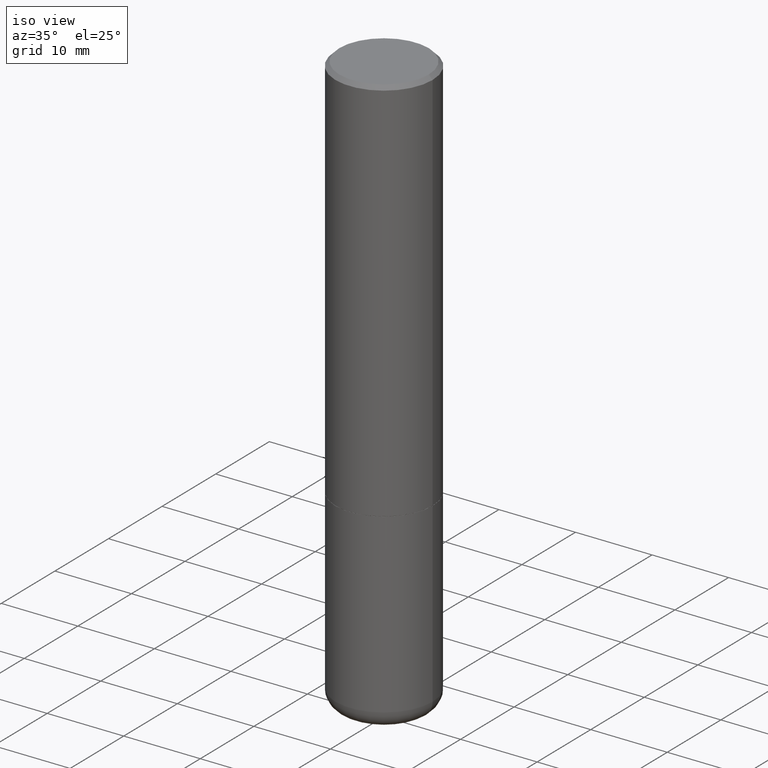
[diagram: clean part render]
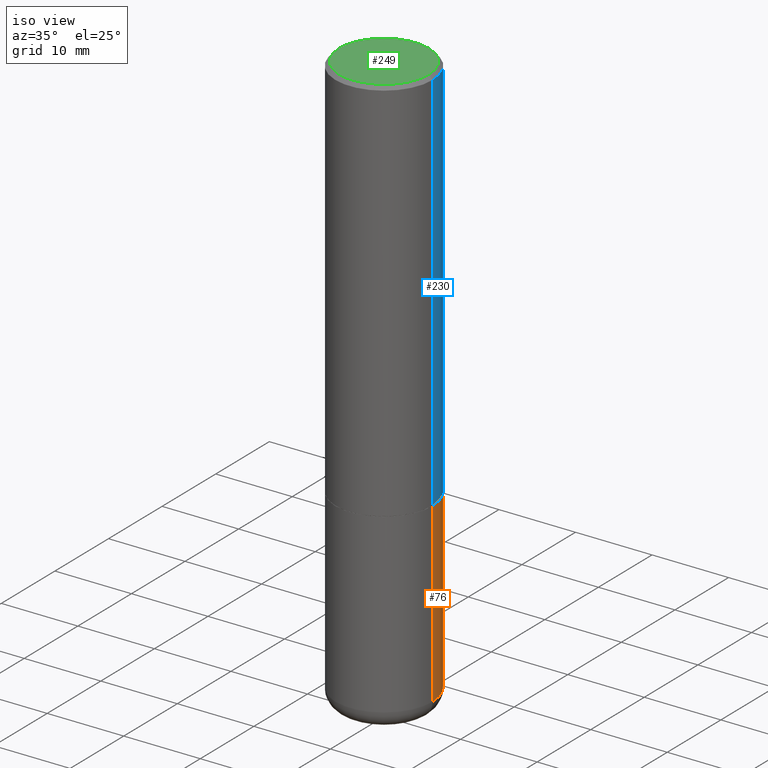
[diagram: same view with three faces highlighted in distinct colors, each labeled with its STEP entity id]
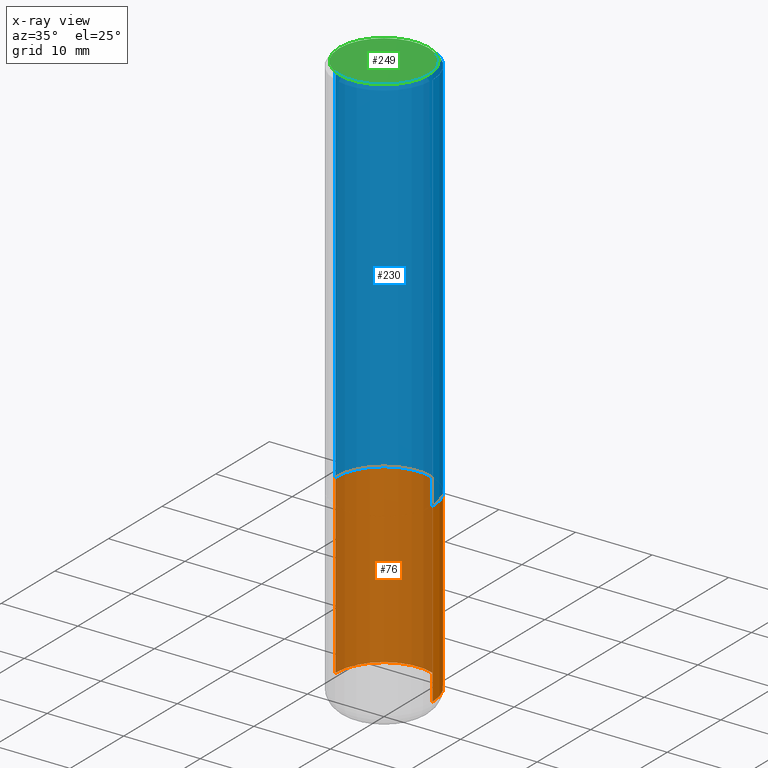
[diagram: x-ray of the same camera — body ghosted, the three highlighted faces saturated]
A machine part, iso view with three faces highlighted in distinct colors.
The next image is the same camera in x-ray (body ghosted, the three faces saturated) — at least one of them is partly hidden behind the body in this view.
Their STEP definitions:

[orange] entity #76 — the highlighted cylindrical surface (partial cylindrical patch) has radius 6.35 mm, axis along (-0, 0, 1).
#11 = AXIS2_PLACEMENT_3D ( 'NONE', #358, #217, #32 ) ;
#16 = ORIENTED_EDGE ( 'NONE', *, *, #342, .F. ) ;
#32 = DIRECTION ( 'NONE',  ( 1.000000000000000000, -6.982962677686266711E-15, 4.876176775795935793E-29 ) ) ;
#40 = CIRCLE ( 'NONE', #175, 0.2500000000000000000 ) ;
#48 = VERTEX_POINT ( 'NONE', #343 ) ;
#60 = CARTESIAN_POINT ( 'NONE',  ( 7.116314225998749245E-29, -1.016021069603355467E-14, -2.910000000000000586 ) ) ;
#76 = ADVANCED_FACE ( 'NONE', ( #219 ), #97, .T. ) ;
#97 = CYLINDRICAL_SURFACE ( 'NONE', #11, 0.2500000000000000000 ) ;
#102 = ORIENTED_EDGE ( 'NONE', *, *, #261, .T. ) ;
#104 = LINE ( 'NONE', #231, #279 ) ;
#107 = EDGE_LOOP ( 'NONE', ( #210, #102, #16, #139 ) ) ;
#113 = CARTESIAN_POINT ( 'NONE',  ( 4.890937612370273754E-29, -6.982962677686291954E-15, -2.000000000000000444 ) ) ;
#122 = AXIS2_PLACEMENT_3D ( 'NONE', #113, #212, #314 ) ;
#129 = EDGE_CURVE ( 'NONE', #216, #48, #390, .T. ) ;
#133 = DIRECTION ( 'NONE',  ( -2.445468806185136597E-29, 3.491481338843145583E-15, 1.000000000000000000 ) ) ;
#139 = ORIENTED_EDGE ( 'NONE', *, *, #129, .F. ) ;
#144 = CARTESIAN_POINT ( 'NONE',  ( 0.2500000000000000000, -1.745740669421566678E-15, 1.219044193948983948E-29 ) ) ;
#173 = CARTESIAN_POINT ( 'NONE',  ( 0.2499999999999998335, -1.190595136545512292E-14, -2.910000000000000586 ) ) ;
#175 = AXIS2_PLACEMENT_3D ( 'NONE', #60, #133, #184 ) ;
#184 = DIRECTION ( 'NONE',  ( 1.000000000000000000, -6.982962677686270655E-15, 0.000000000000000000 ) ) ;
#199 = DIRECTION ( 'NONE',  ( -2.445468806185136877E-29, 3.491481338843145188E-15, 1.000000000000000000 ) ) ;
#210 = ORIENTED_EDGE ( 'NONE', *, *, #399, .T. ) ;
#212 = DIRECTION ( 'NONE',  ( -2.445468806185136597E-29, 3.491481338843145583E-15, 1.000000000000000000 ) ) ;
#216 = VERTEX_POINT ( 'NONE', #173 ) ;
#217 = DIRECTION ( 'NONE',  ( -2.445468806185136597E-29, 3.491481338843145583E-15, 1.000000000000000000 ) ) ;
#219 = FACE_OUTER_BOUND ( 'NONE', #107, .T. ) ;
#231 = CARTESIAN_POINT ( 'NONE',  ( -0.2500000000000000000, 1.776356839400250465E-15, -1.229733772563726445E-29 ) ) ;
#243 = VECTOR ( 'NONE', #411, 39.37007874015748143 ) ;
#260 = CIRCLE ( 'NONE', #122, 0.2500000000000000000 ) ;
#261 = EDGE_CURVE ( 'NONE', #280, #302, #104, .T. ) ;
#279 = VECTOR ( 'NONE', #199, 39.37007874015748143 ) ;
#280 = VERTEX_POINT ( 'NONE', #403 ) ;
#302 = VERTEX_POINT ( 'NONE', #398 ) ;
#314 = DIRECTION ( 'NONE',  ( 1.000000000000000000, -6.982962677686266711E-15, 0.000000000000000000 ) ) ;
#342 = EDGE_CURVE ( 'NONE', #48, #302, #260, .T. ) ;
#343 = CARTESIAN_POINT ( 'NONE',  ( 0.2500000000000000000, -8.728703347107858632E-15, -2.000000000000000444 ) ) ;
#358 = CARTESIAN_POINT ( 'NONE',  ( 0.000000000000000000, 0.000000000000000000, 0.000000000000000000 ) ) ;
#390 = LINE ( 'NONE', #144, #243 ) ;
#398 = CARTESIAN_POINT ( 'NONE',  ( -0.2500000000000000000, -6.795229847459672846E-15, -2.000000000000000444 ) ) ;
#399 = EDGE_CURVE ( 'NONE', #216, #280, #40, .T. ) ;
#403 = CARTESIAN_POINT ( 'NONE',  ( -0.2499999999999998335, -8.383853856633305780E-15, -2.910000000000000586 ) ) ;
#411 = DIRECTION ( 'NONE',  ( -2.445468806185136877E-29, 3.491481338843145188E-15, 1.000000000000000000 ) ) ;

[blue] entity #230 — the highlighted cylindrical surface (partial cylindrical patch) has radius 6.35 mm, axis along (-0, 0, 1).
#13 = VERTEX_POINT ( 'NONE', #351 ) ;
#19 = CARTESIAN_POINT ( 'NONE',  ( 4.890937612370287172E-31, -6.982962677686310098E-17, -0.02000000000000005593 ) ) ;
#36 = DIRECTION ( 'NONE',  ( -2.445468806185136877E-29, 3.491481338843145188E-15, 1.000000000000000000 ) ) ;
#42 = EDGE_CURVE ( 'NONE', #85, #13, #305, .T. ) ;
#54 = CYLINDRICAL_SURFACE ( 'NONE', #354, 0.2500000000000001110 ) ;
#78 = ORIENTED_EDGE ( 'NONE', *, *, #293, .T. ) ;
#79 = ORIENTED_EDGE ( 'NONE', *, *, #42, .F. ) ;
#85 = VERTEX_POINT ( 'NONE', #301 ) ;
#108 = EDGE_CURVE ( 'NONE', #181, #220, #296, .T. ) ;
#111 = VECTOR ( 'NONE', #204, 39.37007874015748143 ) ;
#134 = ORIENTED_EDGE ( 'NONE', *, *, #379, .F. ) ;
#136 = CARTESIAN_POINT ( 'NONE',  ( 4.888492143564088712E-29, -6.979471196347448158E-15, -1.999000000000000110 ) ) ;
#150 = CARTESIAN_POINT ( 'NONE',  ( -0.2500000000000002220, -1.748293572161901516E-15, -1.999000000000000110 ) ) ;
#170 = DIRECTION ( 'NONE',  ( -2.445468806185136597E-29, 3.491481338843145583E-15, 1.000000000000000000 ) ) ;
#178 = ORIENTED_EDGE ( 'NONE', *, *, #108, .T. ) ;
#180 = DIRECTION ( 'NONE',  ( 1.000000000000000000, -6.982962677686266711E-15, 0.000000000000000000 ) ) ;
#181 = VERTEX_POINT ( 'NONE', #150 ) ;
#193 = VECTOR ( 'NONE', #36, 39.37007874015748143 ) ;
#204 = DIRECTION ( 'NONE',  ( -2.445468806185136877E-29, 3.491481338843145188E-15, 1.000000000000000000 ) ) ;
#220 = VERTEX_POINT ( 'NONE', #326 ) ;
#230 = ADVANCED_FACE ( 'NONE', ( #312 ), #54, .T. ) ;
#233 = AXIS2_PLACEMENT_3D ( 'NONE', #136, #274, #241 ) ;
#241 = DIRECTION ( 'NONE',  ( 1.000000000000000000, -6.982962677686268288E-15, 0.000000000000000000 ) ) ;
#248 = DIRECTION ( 'NONE',  ( -2.445468806185136597E-29, 3.491481338843145583E-15, 1.000000000000000000 ) ) ;
#274 = DIRECTION ( 'NONE',  ( -2.445468806185136597E-29, 3.491481338843145583E-15, 1.000000000000000000 ) ) ;
#276 = EDGE_LOOP ( 'NONE', ( #78, #178, #134, #79 ) ) ;
#293 = EDGE_CURVE ( 'NONE', #85, #181, #376, .T. ) ;
#296 = LINE ( 'NONE', #363, #193 ) ;
#301 = CARTESIAN_POINT ( 'NONE',  ( 0.2500000000000002220, -8.725211865769017202E-15, -1.999000000000000110 ) ) ;
#305 = LINE ( 'NONE', #373, #111 ) ;
#307 = AXIS2_PLACEMENT_3D ( 'NONE', #19, #248, #180 ) ;
#312 = FACE_OUTER_BOUND ( 'NONE', #276, .T. ) ;
#326 = CARTESIAN_POINT ( 'NONE',  ( -0.2500000000000000000, 1.675911042644703577E-15, -0.02000000000000005593 ) ) ;
#330 = CIRCLE ( 'NONE', #307, 0.2500000000000000000 ) ;
#335 = DIRECTION ( 'NONE',  ( 1.000000000000000000, -6.982962677686267499E-15, 4.876176775795936353E-29 ) ) ;
#338 = CARTESIAN_POINT ( 'NONE',  ( 0.000000000000000000, 0.000000000000000000, 0.000000000000000000 ) ) ;
#351 = CARTESIAN_POINT ( 'NONE',  ( 0.2500000000000000000, -1.784954126219746189E-15, -0.02000000000000005593 ) ) ;
#354 = AXIS2_PLACEMENT_3D ( 'NONE', #338, #170, #335 ) ;
#363 = CARTESIAN_POINT ( 'NONE',  ( -0.2500000000000001110, 1.776356839400251254E-15, -1.229733772563727146E-29 ) ) ;
#373 = CARTESIAN_POINT ( 'NONE',  ( 0.2500000000000001110, -1.745740669421567664E-15, 1.219044193948984649E-29 ) ) ;
#376 = CIRCLE ( 'NONE', #233, 0.2500000000000002220 ) ;
#379 = EDGE_CURVE ( 'NONE', #13, #220, #330, .T. ) ;

[green] entity #249 — the highlighted planar face has unit normal (0, -0, -1).
#2 = CARTESIAN_POINT ( 'NONE',  ( -3.027169101572137302E-45, 4.321995194103296744E-31, 1.237868622129119302E-16 ) ) ;
#15 = FACE_OUTER_BOUND ( 'NONE', #275, .T. ) ;
#17 = CIRCLE ( 'NONE', #152, 0.2299999999999998712 ) ;
#22 = CARTESIAN_POINT ( 'NONE',  ( 0.2299999999999998712, -1.681434332853598419E-15, 1.237868622129234180E-16 ) ) ;
#26 = EDGE_CURVE ( 'NONE', #247, #378, #17, .T. ) ;
#58 = ORIENTED_EDGE ( 'NONE', *, *, #124, .T. ) ;
#124 = EDGE_CURVE ( 'NONE', #378, #247, #289, .T. ) ;
#146 = DIRECTION ( 'NONE',  ( -2.445468806185136597E-29, 3.491481338843145583E-15, 1.000000000000000000 ) ) ;
#148 = DIRECTION ( 'NONE',  ( 1.000000000000000000, -6.982962677686266711E-15, 4.879110437680778240E-29 ) ) ;
#152 = AXIS2_PLACEMENT_3D ( 'NONE', #172, #146, #281 ) ;
#161 = ORIENTED_EDGE ( 'NONE', *, *, #26, .T. ) ;
#172 = CARTESIAN_POINT ( 'NONE',  ( -3.027169101572137302E-45, 4.321995194103296744E-31, 1.237868622129119302E-16 ) ) ;
#177 = PLANE ( 'NONE',  #244 ) ;
#244 = AXIS2_PLACEMENT_3D ( 'NONE', #341, #271, #268 ) ;
#247 = VERTEX_POINT ( 'NONE', #22 ) ;
#249 = ADVANCED_FACE ( 'NONE', ( #15 ), #177, .F. ) ;
#265 = AXIS2_PLACEMENT_3D ( 'NONE', #2, #287, #148 ) ;
#268 = DIRECTION ( 'NONE',  ( -1.000000000000000000, 6.982962677686265922E-15, -4.876176775795935793E-29 ) ) ;
#271 = DIRECTION ( 'NONE',  ( 2.438088387897960049E-29, -3.491481338843145188E-15, -1.000000000000000000 ) ) ;
#275 = EDGE_LOOP ( 'NONE', ( #58, #161 ) ) ;
#281 = DIRECTION ( 'NONE',  ( 1.000000000000000000, -6.982962677686266711E-15, 4.879110437680778240E-29 ) ) ;
#287 = DIRECTION ( 'NONE',  ( -2.445468806185136597E-29, 3.491481338843145583E-15, 1.000000000000000000 ) ) ;
#289 = CIRCLE ( 'NONE', #265, 0.2299999999999998712 ) ;
#341 = CARTESIAN_POINT ( 'NONE',  ( 1.606081415867840278E-15, 0.2299999999999998712, -7.411472768274671077E-16 ) ) ;
#347 = CARTESIAN_POINT ( 'NONE',  ( -0.2299999999999998712, 1.640996229256272125E-15, 1.237868622129005656E-16 ) ) ;
#378 = VERTEX_POINT ( 'NONE', #347 ) ;